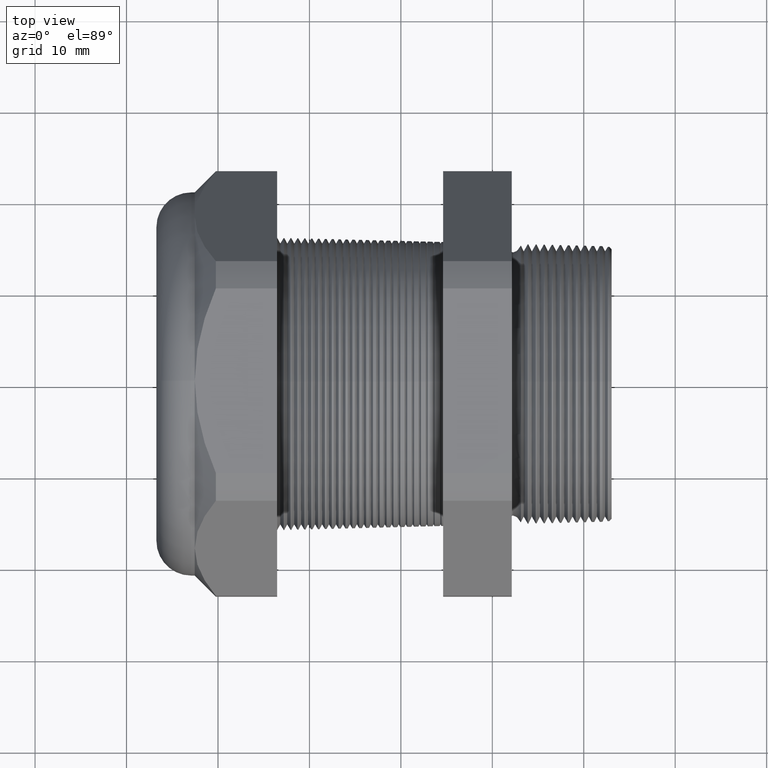
[diagram: clean part render]
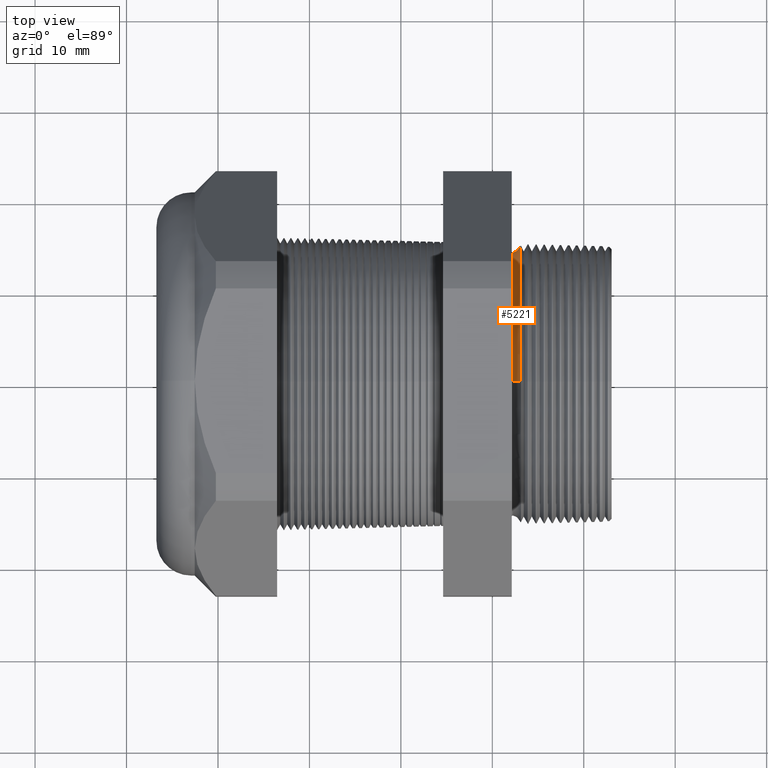
[diagram: same view with one face highlighted and labeled with its STEP entity id]
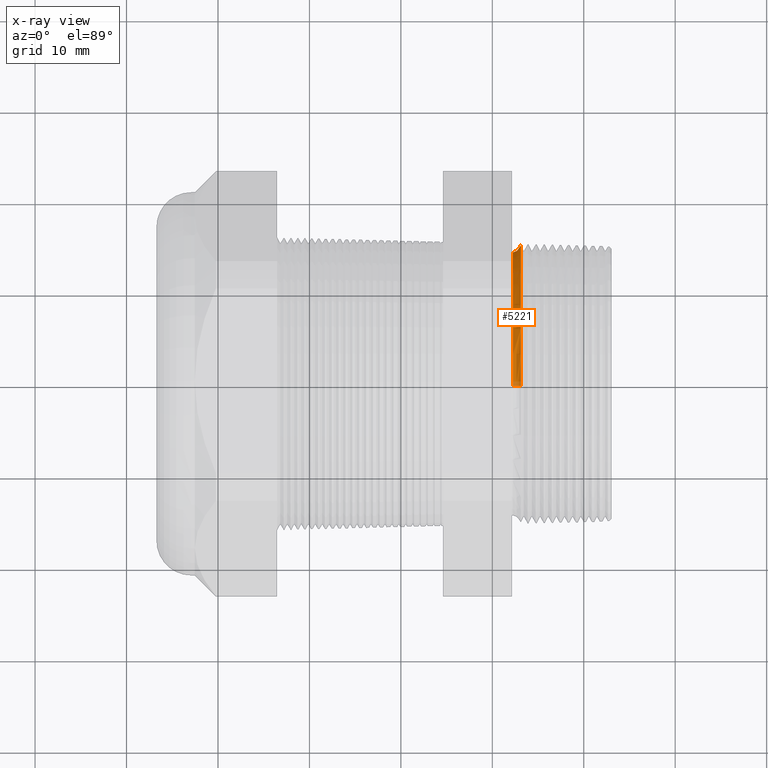
[diagram: x-ray of the same camera — body ghosted, the highlighted face saturated]
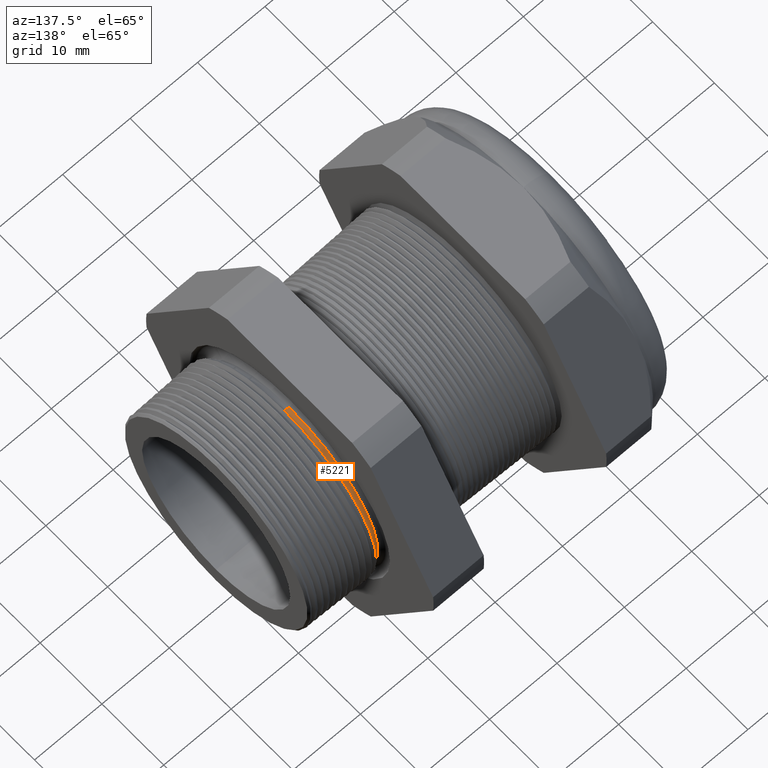
[diagram: same view with one face highlighted and labeled with its STEP entity id]
A machine part, top view. The second image highlights one B-rep face of the part: STEP entity #5221.
The next image is the same camera in x-ray: the body ghosted, the highlighted face saturated — about 3% of this face is hidden behind the body in this view.
A second angle (auxiliary view) of the same face is appended — the face is thin or edge-on in the first view.
In plain terms, the highlighted toroidal blend (fillet) surface has major radius 15.33 mm and minor (blend) radius 0.889 mm.
Its self-contained STEP definition (entity closure, byte-faithful):
#5192 = ORIENTED_EDGE ( 'NONE', *, *, #5247, .T. ) ;
#5218 = EDGE_LOOP ( 'NONE', ( #5192, #5235, #5232, #5236 ) ) ;
#5221 = ADVANCED_FACE ( 'NONE', ( #6157 ), #6156, .F. ) ;
#5232 = ORIENTED_EDGE ( 'NONE', *, *, #5239, .F. ) ;
#5233 = VERTEX_POINT ( 'NONE', #6145 ) ;
#5234 = EDGE_CURVE ( 'NONE', #5233, #5244, #6144, .T. ) ;
#5235 = ORIENTED_EDGE ( 'NONE', *, *, #5245, .T. ) ;
#5236 = ORIENTED_EDGE ( 'NONE', *, *, #5234, .F. ) ;
#5237 = VERTEX_POINT ( 'NONE', #6139 ) ;
#5239 = EDGE_CURVE ( 'NONE', #5244, #5246, #6136, .T. ) ;
#5244 = VERTEX_POINT ( 'NONE', #6178 ) ;
#5245 = EDGE_CURVE ( 'NONE', #5237, #5246, #6177, .T. ) ;
#5246 = VERTEX_POINT ( 'NONE', #6172 ) ;
#5247 = EDGE_CURVE ( 'NONE', #5233, #5237, #6171, .T. ) ;
#6132 = DIRECTION ( 'NONE',  ( 0.0000000000000000000, 1.224646799147354900E-016, 1.000000000000000000 ) ) ;
#6133 = DIRECTION ( 'NONE',  ( 0.0000000000000000000, 1.000000000000000000, -1.224646799147353200E-016 ) ) ;
#6134 = CARTESIAN_POINT ( 'NONE',  ( -0.3049999999999999400, 7.391281930635429700E-017, 0.6035439716807758900 ) ) ;
#6135 = AXIS2_PLACEMENT_3D ( 'NONE', #6134, #6133, #6132 ) ;
#6136 = CIRCLE ( 'NONE', #6135, 0.03499999999999996900 ) ;
#6139 = CARTESIAN_POINT ( 'NONE',  ( -0.3049999999999999400, 0.0000000000000000000, -0.5685439716807759700 ) ) ;
#6140 = DIRECTION ( 'NONE',  ( 0.0000000000000000000, 0.0000000000000000000, 1.000000000000000000 ) ) ;
#6141 = DIRECTION ( 'NONE',  ( 1.000000000000000000, 0.0000000000000000000, 0.0000000000000000000 ) ) ;
#6142 = CARTESIAN_POINT ( 'NONE',  ( -0.2708463023710456800, 0.0000000000000000000, 0.0000000000000000000 ) ) ;
#6143 = AXIS2_PLACEMENT_3D ( 'NONE', #6142, #6141, #6140 ) ;
#6144 = CIRCLE ( 'NONE', #6143, 0.5958938123183819000 ) ;
#6145 = CARTESIAN_POINT ( 'NONE',  ( -0.2708463023710456800, 7.297594498874198900E-017, -0.5958938123183819000 ) ) ;
#6152 = DIRECTION ( 'NONE',  ( 0.0000000000000000000, 0.0000000000000000000, -1.000000000000000000 ) ) ;
#6153 = DIRECTION ( 'NONE',  ( 1.000000000000000000, 0.0000000000000000000, 0.0000000000000000000 ) ) ;
#6154 = CARTESIAN_POINT ( 'NONE',  ( -0.3049999999999999400, 0.0000000000000000000, 0.0000000000000000000 ) ) ;
#6155 = AXIS2_PLACEMENT_3D ( 'NONE', #6154, #6153, #6152 ) ;
#6156 = TOROIDAL_SURFACE ( 'NONE', #6155, 0.6035439716807758900, 0.03499999999999994800 ) ;
#6157 = FACE_OUTER_BOUND ( 'NONE', #5218, .T. ) ;
#6167 = DIRECTION ( 'NONE',  ( 0.0000000000000000000, 0.0000000000000000000, -1.000000000000000000 ) ) ;
#6168 = DIRECTION ( 'NONE',  ( 0.0000000000000000000, -1.000000000000000000, 0.0000000000000000000 ) ) ;
#6169 = CARTESIAN_POINT ( 'NONE',  ( -0.3049999999999999400, 0.0000000000000000000, -0.6035439716807758900 ) ) ;
#6170 = AXIS2_PLACEMENT_3D ( 'NONE', #6169, #6168, #6167 ) ;
#6171 = CIRCLE ( 'NONE', #6170, 0.03499999999999996900 ) ;
#6172 = CARTESIAN_POINT ( 'NONE',  ( -0.3049999999999999400, 6.962655550933855800E-017, 0.5685439716807759700 ) ) ;
#6173 = DIRECTION ( 'NONE',  ( 0.0000000000000000000, 0.0000000000000000000, -1.000000000000000000 ) ) ;
#6174 = DIRECTION ( 'NONE',  ( 1.000000000000000000, 0.0000000000000000000, 0.0000000000000000000 ) ) ;
#6175 = CARTESIAN_POINT ( 'NONE',  ( -0.3049999999999999400, 0.0000000000000000000, 0.0000000000000000000 ) ) ;
#6176 = AXIS2_PLACEMENT_3D ( 'NONE', #6175, #6174, #6173 ) ;
#6177 = CIRCLE ( 'NONE', #6176, 0.5685439716807759700 ) ;
#6178 = CARTESIAN_POINT ( 'NONE',  ( -0.2708463023710456800, 0.0000000000000000000, 0.5958938123183819000 ) ) ;